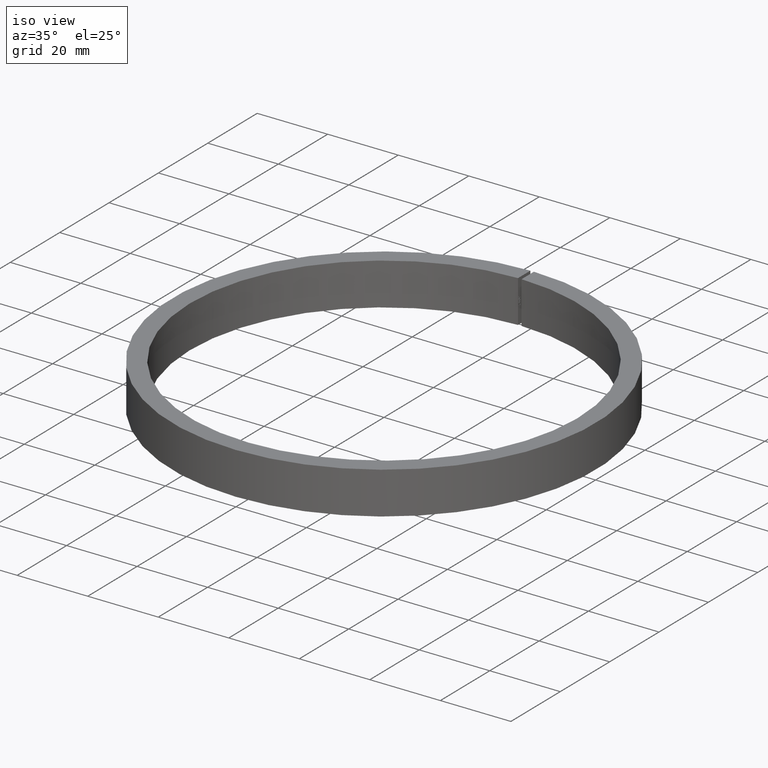
[diagram: clean part render]
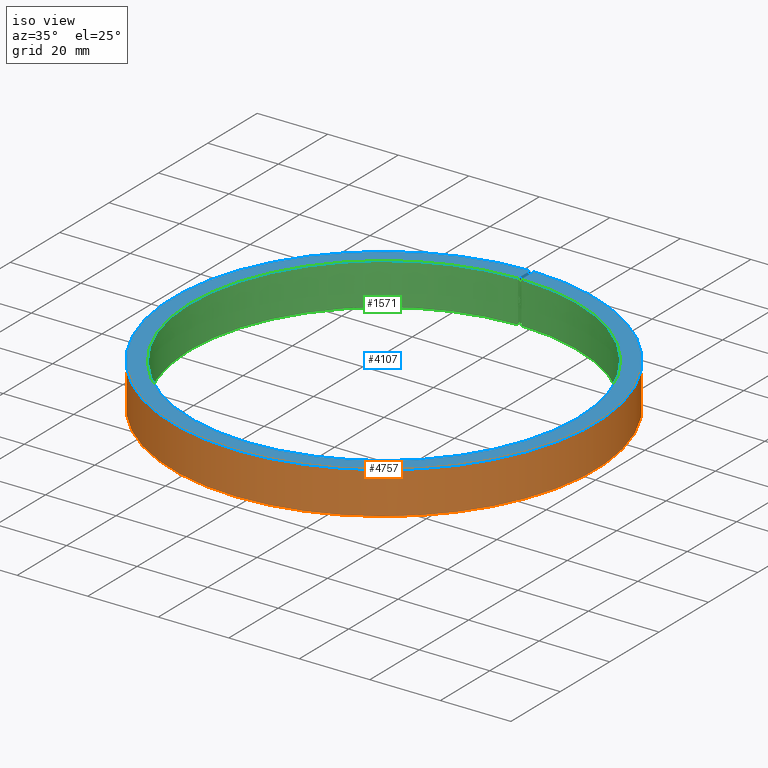
[diagram: same view with three faces highlighted in distinct colors, each labeled with its STEP entity id]
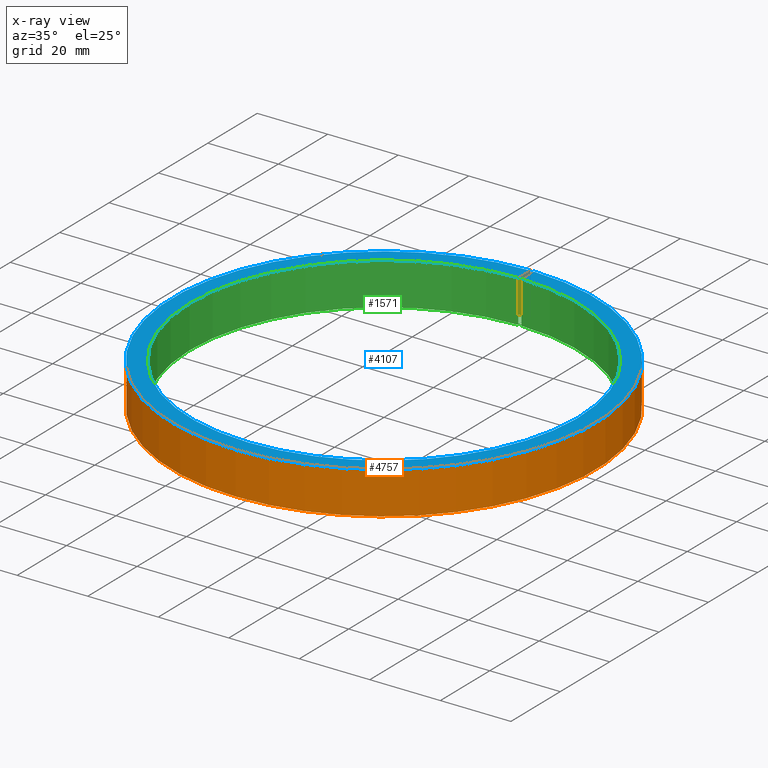
[diagram: x-ray of the same camera — body ghosted, the three highlighted faces saturated]
A machine part, iso view with three faces highlighted in distinct colors.
The next image is the same camera in x-ray (body ghosted, the three faces saturated) — at least one of them is partly hidden behind the body in this view.
Their STEP definitions:

[orange] entity #4757 — the highlighted cylindrical surface (partial cylindrical patch) has radius 60 mm, axis along (-0, -0, -1).
#8 = AXIS2_PLACEMENT_3D ( 'NONE', #8267, #3149, #3871 ) ;
#380 = DIRECTION ( 'NONE',  ( -1.000000000000000000, 0.0000000000000000000, 0.0000000000000000000 ) ) ;
#413 = AXIS2_PLACEMENT_3D ( 'NONE', #6201, #6140, #380 ) ;
#779 = ORIENTED_EDGE ( 'NONE', *, *, #7933, .T. ) ;
#1135 = VERTEX_POINT ( 'NONE', #7824 ) ;
#1364 = CIRCLE ( 'NONE', #8, 60.00000000000000000 ) ;
#1448 = VECTOR ( 'NONE', #3716, 1000.000000000000000 ) ;
#1868 = LINE ( 'NONE', #4467, #1448 ) ;
#2165 = ORIENTED_EDGE ( 'NONE', *, *, #5342, .T. ) ;
#3149 = DIRECTION ( 'NONE',  ( -0.0000000000000000000, -0.0000000000000000000, -1.000000000000000000 ) ) ;
#3379 = FACE_OUTER_BOUND ( 'NONE', #5453, .T. ) ;
#3506 = CARTESIAN_POINT ( 'NONE',  ( -0.5000000000000000000, 59.99791663049642700, -6.000000000000001800 ) ) ;
#3578 = VERTEX_POINT ( 'NONE', #4814 ) ;
#3590 = VERTEX_POINT ( 'NONE', #6279 ) ;
#3716 = DIRECTION ( 'NONE',  ( -0.0000000000000000000, -0.0000000000000000000, 1.000000000000000000 ) ) ;
#3871 = DIRECTION ( 'NONE',  ( -1.000000000000000000, 0.0000000000000000000, 0.0000000000000000000 ) ) ;
#4168 = ORIENTED_EDGE ( 'NONE', *, *, #5948, .F. ) ;
#4467 = CARTESIAN_POINT ( 'NONE',  ( 0.5000000000000000000, 59.99791663049642700, -6.000000000000001800 ) ) ;
#4606 = EDGE_CURVE ( 'NONE', #1135, #3578, #7441, .T. ) ;
#4757 = ADVANCED_FACE ( 'NONE', ( #3379 ), #7350, .T. ) ;
#4814 = CARTESIAN_POINT ( 'NONE',  ( -0.5000000000000000000, 59.99791663049642700, 5.999999999999999100 ) ) ;
#4839 = VECTOR ( 'NONE', #6386, 1000.000000000000000 ) ;
#5011 = AXIS2_PLACEMENT_3D ( 'NONE', #8120, #8064, #8888 ) ;
#5342 = EDGE_CURVE ( 'NONE', #3590, #7513, #1868, .T. ) ;
#5453 = EDGE_LOOP ( 'NONE', ( #4168, #2165, #779, #8401 ) ) ;
#5948 = EDGE_CURVE ( 'NONE', #3590, #1135, #1364, .T. ) ;
#6140 = DIRECTION ( 'NONE',  ( -0.0000000000000000000, -0.0000000000000000000, -1.000000000000000000 ) ) ;
#6201 = CARTESIAN_POINT ( 'NONE',  ( 0.0000000000000000000, 0.0000000000000000000, 5.999999999999998200 ) ) ;
#6279 = CARTESIAN_POINT ( 'NONE',  ( 0.5000000000000000000, 59.99791663049642700, -6.000000000000001800 ) ) ;
#6386 = DIRECTION ( 'NONE',  ( -0.0000000000000000000, -0.0000000000000000000, 1.000000000000000000 ) ) ;
#7350 = CYLINDRICAL_SURFACE ( 'NONE', #5011, 60.00000000000000000 ) ;
#7441 = LINE ( 'NONE', #3506, #4839 ) ;
#7513 = VERTEX_POINT ( 'NONE', #8097 ) ;
#7824 = CARTESIAN_POINT ( 'NONE',  ( -0.5000000000000000000, 59.99791663049643400, -6.000000000000001800 ) ) ;
#7933 = EDGE_CURVE ( 'NONE', #7513, #3578, #8403, .T. ) ;
#8064 = DIRECTION ( 'NONE',  ( -0.0000000000000000000, -0.0000000000000000000, -1.000000000000000000 ) ) ;
#8097 = CARTESIAN_POINT ( 'NONE',  ( 0.5000000000000000000, 59.99791663049643400, 5.999999999999998200 ) ) ;
#8120 = CARTESIAN_POINT ( 'NONE',  ( 0.0000000000000000000, 0.0000000000000000000, 0.0000000000000000000 ) ) ;
#8267 = CARTESIAN_POINT ( 'NONE',  ( 0.0000000000000000000, 0.0000000000000000000, -6.000000000000001800 ) ) ;
#8401 = ORIENTED_EDGE ( 'NONE', *, *, #4606, .F. ) ;
#8403 = CIRCLE ( 'NONE', #413, 60.00000000000000000 ) ;
#8888 = DIRECTION ( 'NONE',  ( -1.000000000000000000, 0.0000000000000000000, 0.0000000000000000000 ) ) ;

[blue] entity #4107 — the highlighted planar face has unit normal (-0, 0, -1).
#65 = CARTESIAN_POINT ( 'NONE',  ( 0.5000000000000000000, 54.99772722576815900, 5.999999999999999100 ) ) ;
#85 = EDGE_CURVE ( 'NONE', #6539, #7513, #3768, .T. ) ;
#380 = DIRECTION ( 'NONE',  ( -1.000000000000000000, 0.0000000000000000000, 0.0000000000000000000 ) ) ;
#413 = AXIS2_PLACEMENT_3D ( 'NONE', #6201, #6140, #380 ) ;
#910 = LINE ( 'NONE', #7832, #8291 ) ;
#1105 = ORIENTED_EDGE ( 'NONE', *, *, #7933, .F. ) ;
#1167 = DIRECTION ( 'NONE',  ( -1.000000000000000000, 0.0000000000000000000, 0.0000000000000000000 ) ) ;
#2034 = DIRECTION ( 'NONE',  ( -0.0000000000000000000, -0.0000000000000000000, -1.000000000000000000 ) ) ;
#2321 = AXIS2_PLACEMENT_3D ( 'NONE', #3948, #8319, #1167 ) ;
#2810 = DIRECTION ( 'NONE',  ( 0.0000000000000000000, 1.000000000000000000, -0.0000000000000000000 ) ) ;
#2853 = CIRCLE ( 'NONE', #4694, 55.00000000000000000 ) ;
#3310 = ORIENTED_EDGE ( 'NONE', *, *, #8175, .T. ) ;
#3471 = EDGE_CURVE ( 'NONE', #6539, #4269, #2853, .T. ) ;
#3578 = VERTEX_POINT ( 'NONE', #4814 ) ;
#3604 = ORIENTED_EDGE ( 'NONE', *, *, #85, .F. ) ;
#3768 = LINE ( 'NONE', #5415, #6033 ) ;
#3948 = CARTESIAN_POINT ( 'NONE',  ( 0.0000000000000000000, -55.00000000000000000, 5.999999999999998200 ) ) ;
#4107 = ADVANCED_FACE ( 'NONE', ( #8702 ), #8227, .F. ) ;
#4207 = CARTESIAN_POINT ( 'NONE',  ( -0.5000000000000000000, 54.99772722576815900, 5.999999999999999100 ) ) ;
#4269 = VERTEX_POINT ( 'NONE', #4207 ) ;
#4694 = AXIS2_PLACEMENT_3D ( 'NONE', #7104, #2034, #5587 ) ;
#4814 = CARTESIAN_POINT ( 'NONE',  ( -0.5000000000000000000, 59.99791663049642700, 5.999999999999999100 ) ) ;
#5231 = ORIENTED_EDGE ( 'NONE', *, *, #3471, .T. ) ;
#5415 = CARTESIAN_POINT ( 'NONE',  ( 0.5000000000000000000, 0.0000000000000000000, 5.999999999999999100 ) ) ;
#5587 = DIRECTION ( 'NONE',  ( -1.000000000000000000, 0.0000000000000000000, 0.0000000000000000000 ) ) ;
#6033 = VECTOR ( 'NONE', #8239, 1000.000000000000000 ) ;
#6140 = DIRECTION ( 'NONE',  ( -0.0000000000000000000, -0.0000000000000000000, -1.000000000000000000 ) ) ;
#6201 = CARTESIAN_POINT ( 'NONE',  ( 0.0000000000000000000, 0.0000000000000000000, 5.999999999999998200 ) ) ;
#6539 = VERTEX_POINT ( 'NONE', #65 ) ;
#7104 = CARTESIAN_POINT ( 'NONE',  ( 0.0000000000000000000, 0.0000000000000000000, 5.999999999999999100 ) ) ;
#7513 = VERTEX_POINT ( 'NONE', #8097 ) ;
#7832 = CARTESIAN_POINT ( 'NONE',  ( -0.5000000000000000000, 0.0000000000000000000, 5.999999999999999100 ) ) ;
#7933 = EDGE_CURVE ( 'NONE', #7513, #3578, #8403, .T. ) ;
#8012 = EDGE_LOOP ( 'NONE', ( #1105, #3604, #5231, #3310 ) ) ;
#8097 = CARTESIAN_POINT ( 'NONE',  ( 0.5000000000000000000, 59.99791663049643400, 5.999999999999998200 ) ) ;
#8175 = EDGE_CURVE ( 'NONE', #4269, #3578, #910, .T. ) ;
#8227 = PLANE ( 'NONE',  #2321 ) ;
#8239 = DIRECTION ( 'NONE',  ( 0.0000000000000000000, 1.000000000000000000, -0.0000000000000000000 ) ) ;
#8291 = VECTOR ( 'NONE', #2810, 1000.000000000000000 ) ;
#8319 = DIRECTION ( 'NONE',  ( -0.0000000000000000000, 0.0000000000000000000, -1.000000000000000000 ) ) ;
#8403 = CIRCLE ( 'NONE', #413, 60.00000000000000000 ) ;
#8702 = FACE_OUTER_BOUND ( 'NONE', #8012, .T. ) ;

[green] entity #1571 — the highlighted cylindrical surface (partial cylindrical patch) has radius 55 mm, axis along (-0, -0, -1).
#65 = CARTESIAN_POINT ( 'NONE',  ( 0.5000000000000000000, 54.99772722576815900, 5.999999999999999100 ) ) ;
#529 = CARTESIAN_POINT ( 'NONE',  ( -0.5000000000000000000, 54.99772722576815900, -6.000000000000001800 ) ) ;
#1272 = EDGE_CURVE ( 'NONE', #6171, #6924, #3290, .T. ) ;
#1449 = EDGE_CURVE ( 'NONE', #6171, #6539, #2415, .T. ) ;
#1571 = ADVANCED_FACE ( 'NONE', ( #6233 ), #6014, .F. ) ;
#2034 = DIRECTION ( 'NONE',  ( -0.0000000000000000000, -0.0000000000000000000, -1.000000000000000000 ) ) ;
#2415 = LINE ( 'NONE', #3376, #8362 ) ;
#2853 = CIRCLE ( 'NONE', #4694, 55.00000000000000000 ) ;
#3171 = EDGE_CURVE ( 'NONE', #6924, #4269, #7009, .T. ) ;
#3276 = DIRECTION ( 'NONE',  ( -0.0000000000000000000, -0.0000000000000000000, 1.000000000000000000 ) ) ;
#3290 = CIRCLE ( 'NONE', #4298, 55.00000000000000000 ) ;
#3376 = CARTESIAN_POINT ( 'NONE',  ( 0.5000000000000000000, 54.99772722576815900, -6.000000000000001800 ) ) ;
#3471 = EDGE_CURVE ( 'NONE', #6539, #4269, #2853, .T. ) ;
#3627 = ORIENTED_EDGE ( 'NONE', *, *, #3171, .T. ) ;
#3853 = CARTESIAN_POINT ( 'NONE',  ( 0.0000000000000000000, 0.0000000000000000000, -6.000000000000000900 ) ) ;
#4207 = CARTESIAN_POINT ( 'NONE',  ( -0.5000000000000000000, 54.99772722576815900, 5.999999999999999100 ) ) ;
#4269 = VERTEX_POINT ( 'NONE', #4207 ) ;
#4298 = AXIS2_PLACEMENT_3D ( 'NONE', #3853, #8222, #8898 ) ;
#4694 = AXIS2_PLACEMENT_3D ( 'NONE', #7104, #2034, #5587 ) ;
#4769 = ORIENTED_EDGE ( 'NONE', *, *, #3471, .F. ) ;
#5073 = CARTESIAN_POINT ( 'NONE',  ( 0.5000000000000000000, 54.99772722576815900, -6.000000000000001800 ) ) ;
#5248 = AXIS2_PLACEMENT_3D ( 'NONE', #8581, #8441, #7170 ) ;
#5587 = DIRECTION ( 'NONE',  ( -1.000000000000000000, 0.0000000000000000000, 0.0000000000000000000 ) ) ;
#5769 = CARTESIAN_POINT ( 'NONE',  ( -0.5000000000000000000, 54.99772722576815900, -6.000000000000001800 ) ) ;
#6014 = CYLINDRICAL_SURFACE ( 'NONE', #5248, 55.00000000000000000 ) ;
#6171 = VERTEX_POINT ( 'NONE', #5073 ) ;
#6212 = EDGE_LOOP ( 'NONE', ( #4769, #9005, #7625, #3627 ) ) ;
#6233 = FACE_OUTER_BOUND ( 'NONE', #6212, .T. ) ;
#6539 = VERTEX_POINT ( 'NONE', #65 ) ;
#6891 = VECTOR ( 'NONE', #6982, 1000.000000000000000 ) ;
#6924 = VERTEX_POINT ( 'NONE', #5769 ) ;
#6982 = DIRECTION ( 'NONE',  ( -0.0000000000000000000, -0.0000000000000000000, 1.000000000000000000 ) ) ;
#7009 = LINE ( 'NONE', #529, #6891 ) ;
#7104 = CARTESIAN_POINT ( 'NONE',  ( 0.0000000000000000000, 0.0000000000000000000, 5.999999999999999100 ) ) ;
#7170 = DIRECTION ( 'NONE',  ( -1.000000000000000000, 0.0000000000000000000, 0.0000000000000000000 ) ) ;
#7625 = ORIENTED_EDGE ( 'NONE', *, *, #1272, .T. ) ;
#8222 = DIRECTION ( 'NONE',  ( -0.0000000000000000000, -0.0000000000000000000, -1.000000000000000000 ) ) ;
#8362 = VECTOR ( 'NONE', #3276, 1000.000000000000000 ) ;
#8441 = DIRECTION ( 'NONE',  ( -0.0000000000000000000, -0.0000000000000000000, -1.000000000000000000 ) ) ;
#8581 = CARTESIAN_POINT ( 'NONE',  ( 0.0000000000000000000, 0.0000000000000000000, 0.0000000000000000000 ) ) ;
#8898 = DIRECTION ( 'NONE',  ( -1.000000000000000000, 0.0000000000000000000, 0.0000000000000000000 ) ) ;
#9005 = ORIENTED_EDGE ( 'NONE', *, *, #1449, .F. ) ;